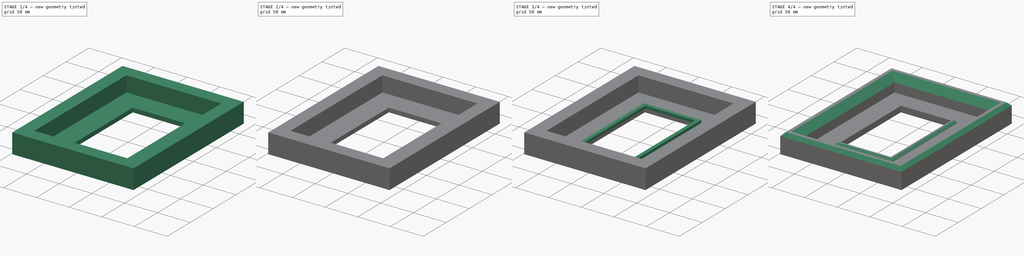
[diagram: build sequence overview — one tinted view per stage of 4, left to right]
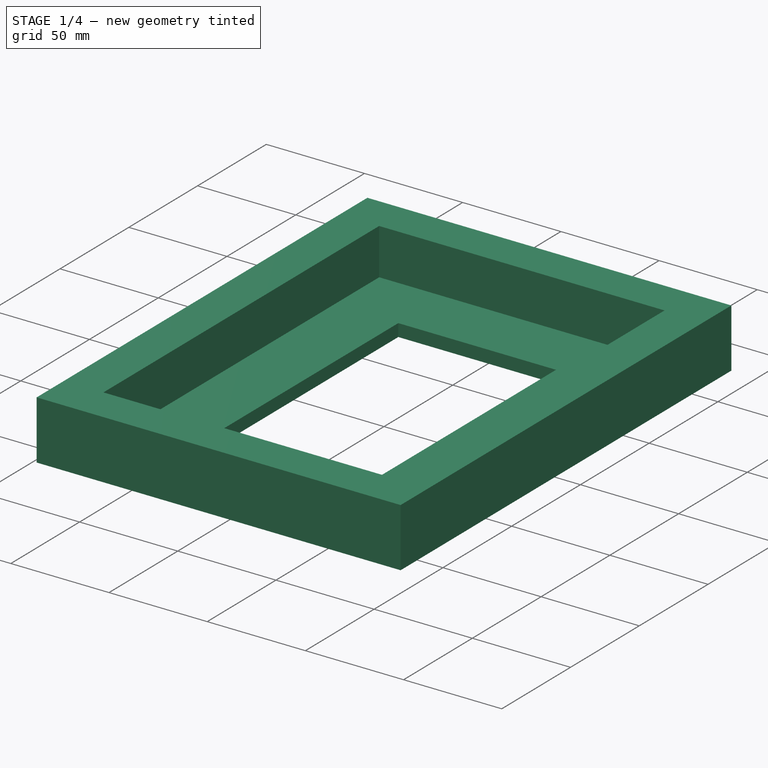
[diagram: stage 1 of 4 — iso view after this stage's code; geometry added in this stage tinted green]
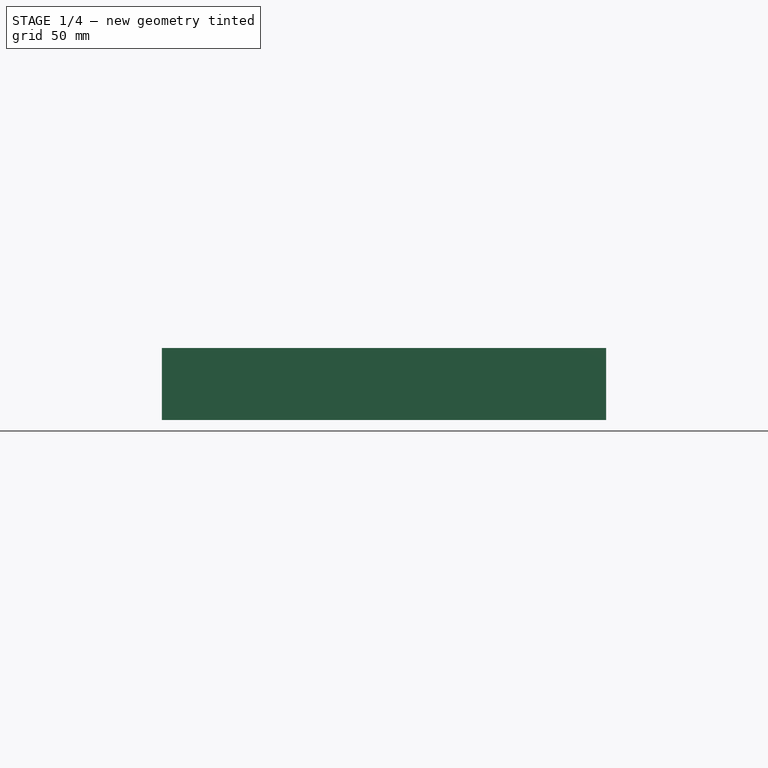
[diagram: stage 1 of 4 — front view after this stage's code; geometry added in this stage tinted green]
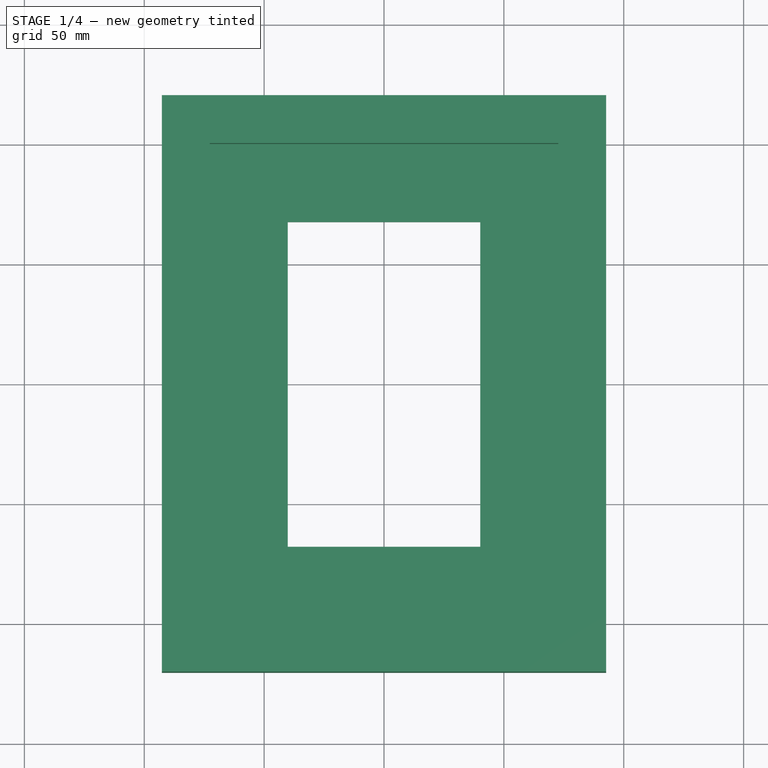
[diagram: stage 1 of 4 — top view after this stage's code; geometry added in this stage tinted green]
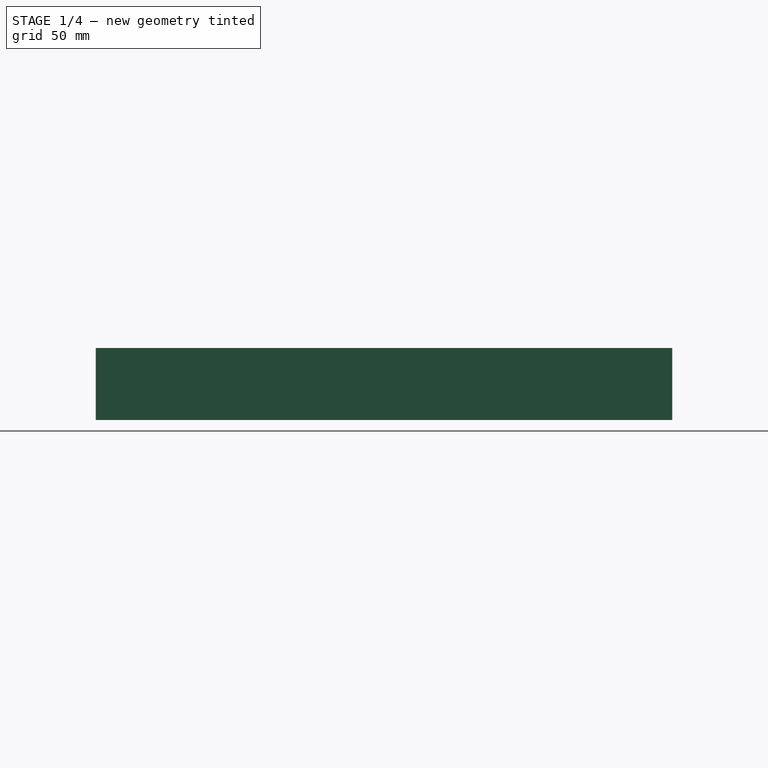
[diagram: stage 1 of 4 — right view after this stage's code; geometry added in this stage tinted green]
FCSTD DOCUMENT  (FreeCAD 0.21R33771 (Git))
Label: Wall Frame
License: All rights reserved
LicenseURL: http://en.wikipedia.org/wiki/All_rights_reserved
objects: Sketcher::SketchObject×9, PartDesign::Pocket×7, PartDesign::Chamfer×3, PartDesign::Pad×2, Spreadsheet::Sheet×1, PartDesign::Body×1, App::Part×1
note: 34 computed .brp shape members not serialized (recipe doc carries the construction recipe); baked Part::Feature solids carry a one-line shape summary decoded from their .brp

FEATURE [Sketcher::SketchObject] Sketch  label="Wall Frame Outer Sketch"
  FullyConstrained = true
  MapMode = 5
  Support = -> [XY_Plane001]
  expr: Constraints[10] = Spreadsheet.Frame_Outer_Width
  expr: Constraints[11] = Spreadsheet.Frame_Outer_Length
  sketch-geometry (5):
    g0: LineSegment StartX=-92.66 StartY=120.25 StartZ=0 EndX=-92.66 EndY=-120.25 EndZ=0
    g1: LineSegment StartX=-92.66 StartY=-120.25 StartZ=0 EndX=92.66 EndY=-120.25 EndZ=0
    g2: LineSegment StartX=92.66 StartY=-120.25 StartZ=0 EndX=92.66 EndY=120.25 EndZ=0
    g3: LineSegment StartX=92.66 StartY=120.25 StartZ=0 EndX=-92.66 EndY=120.25 EndZ=0
    g4: GeomPoint X=0 Y=0 Z=0
  constraints (12):
    c: Coincident(g0,g1)
    c: Coincident(g1,g2)
    c: Coincident(g2,g3)
    c: Coincident(g3,g0)
    c: Horizontal(g1)
    c: Horizontal(g3)
    c: Vertical(g0)
    c: Vertical(g2)
    c: Symmetric(g1,g0,g4)
    c: Coincident(g4,g-1)
    c: DistanceX(g3,g3) = 185.32
    c: DistanceY(g2,g2) = 240.5
FEATURE [PartDesign::Pad] Pad  label="Wall Frame Outer Pad"
  Direction = (0,0,1)
  Length = 30
  Length2 = 10
  Profile = -> Sketch
  ReferenceAxis = -> Sketch [N_Axis]
  Type = 0
FEATURE [Spreadsheet::Sheet] Spreadsheet  label="p"
  cells = A1='Frame_Outer_Width; B1(Frame_Outer_Width)=185.32; C1='DO NOT CHANGE; A2='Frame_Outer_Length; B2(Frame_Outer_Length)=240.5; C2='DO NOT CHANGE; A3='Frame_Outer_Thickness; B3(Frame_Outer_Thickness)=30; C3='DO NOT CHANGE; A4='Frame_Outer_Inner_Chamfer; B4(Frame_Outer_Inner_Chamfer)=10; C4='<---   YOU MAY CHANGE; A5='Frame_Outer_Outer_Chamfer; B5(Frame_Outer_Outer_Chamfer)=5; C5='<---   YOU MAY CHANGE; A7='Frame_First_Inner_Pocket_Width; B7(card_holder_width)=145.32; C7='DO NOT CHANGE; A8='Frame_First_Inner_Pocket_Length; B8(card_holder_length)=200.5; C8='DO NOT CHANGE; A9='card_holder_thickness; B9(card_holder_thickness)=6.4; C9='DO NOT CHANGE; A10='Frame_First_Inner_Pocket_Depth; B10(Frame_First_Inner_Pocket)==B3 - B14; C10='DO NOT CHANGE; F11='PSA Normal Card; G11='PSA Topps Giants Card; A12='PSA_Frame_Width; B12(PSA_Frame_Width)=80.32; C12='<---   YOU MAY CHANGE; F12=80.32; G12=107.485; A13='PSA_Frame_Length; B13(PSA_Frame_Length)=135.5; C13='<---   YOU MAY CHANGE; F13=135.5; G13=184.2; A14='PSA_Frame_Thickness; B14(PSA_Frame_Thickness)=6.4; C14='DO NOT CHANGE; A16='Frame_PSA_Border_Height; B16(Frame_PSA_Border_Height)=4; C16='<---   YOU MAY CHANGE; A17='Frame_PSA_Border_Chamfer; B17(Frame_PSA_Border_Chamfer)=3; C17='<---   YOU MAY CHANGE; D17='Must be at least 1mm less "Frame_PSA_Border_Height", may not be same
FEATURE [Sketcher::SketchObject] Sketch003  label="Wall Frame First Inner Sketch"
  AttachmentOffset = pos=(0,0,30) rot=(0,0,1;0rad)
  FullyConstrained = true
  MapMode = 5
  Placement = pos=(0,0,30) rot=(0,0,1;0rad)
  Support = -> [XY_Plane001]
  expr: Constraints[10] = <<p>>.card_holder_width
  expr: Constraints[11] = <<p>>.card_holder_length
  sketch-geometry (5):
    g0: LineSegment StartX=-72.66 StartY=100.25 StartZ=0 EndX=-72.66 EndY=-100.25 EndZ=0
    g1: LineSegment StartX=-72.66 StartY=-100.25 StartZ=0 EndX=72.66 EndY=-100.25 EndZ=0
    g2: LineSegment StartX=72.66 StartY=-100.25 StartZ=0 EndX=72.66 EndY=100.25 EndZ=0
    g3: LineSegment StartX=72.66 StartY=100.25 StartZ=0 EndX=-72.66 EndY=100.25 EndZ=0
    g4: GeomPoint X=0 Y=0 Z=0
  constraints (12):
    c: Coincident(g0,g1)
    c: Coincident(g1,g2)
    c: Coincident(g2,g3)
    c: Coincident(g3,g0)
    c: Horizontal(g1)
    c: Horizontal(g3)
    c: Vertical(g0)
    c: Vertical(g2)
    c: Symmetric(g1,g0,g4)
    c: Coincident(g4,g-1)
    c: DistanceX(g3,g3) = 145.32
    c: DistanceY(g2,g2) = 200.5
FEATURE [PartDesign::Pocket] Pocket  label="Wall Frame First Inner Pocket"
  BaseFeature = -> Pad
  Direction = (0,0,-1)
  Length = 23.6
  Length2 = 5
  Profile = -> Sketch003
  ReferenceAxis = -> Sketch003 [N_Axis]
  Type = 0
  expr: Length = <<p>>.Frame_First_Inner_Pocket
FEATURE [Sketcher::SketchObject] Sketch004  label="Wall Frame PSA Sketch"
  AttachmentOffset = pos=(0,0,6.4) rot=(0,0,1;0rad)
  FullyConstrained = true
  MapMode = 5
  Placement = pos=(0,0,6.4) rot=(0,0,1;0rad)
  Support = -> [XY_Plane001]
  expr: .AttachmentOffset.Base.z = <<p>>.card_holder_thickness
  expr: Constraints[10] = Spreadsheet.PSA_Frame_Width
  expr: Constraints[11] = Spreadsheet.PSA_Frame_Length
  sketch-geometry (5):
    g0: LineSegment StartX=-40.16 StartY=67.75 StartZ=0 EndX=-40.16 EndY=-67.75 EndZ=0
    g1: LineSegment StartX=-40.16 StartY=-67.75 StartZ=0 EndX=40.16 EndY=-67.75 EndZ=0
    g2: LineSegment StartX=40.16 StartY=-67.75 StartZ=0 EndX=40.16 EndY=67.75 EndZ=0
    g3: LineSegment StartX=40.16 StartY=67.75 StartZ=0 EndX=-40.16 EndY=67.75 EndZ=0
    g4: GeomPoint X=0 Y=0 Z=0
  constraints (12):
    c: Coincident(g0,g1)
    c: Coincident(g1,g2)
    c: Coincident(g2,g3)
    c: Coincident(g3,g0)
    c: Horizontal(g1)
    c: Horizontal(g3)
    c: Vertical(g0)
    c: Vertical(g2)
    c: Symmetric(g1,g0,g4)
    c: Coincident(g4,g-1)
    c: DistanceX(g3,g3) = 80.32
    c: DistanceY(g2,g2) = 135.5
FEATURE [PartDesign::Pocket] Pocket001  label="Wall Frame PSA Pocket"
  BaseFeature = -> Pocket
  Direction = (0,0,-1)
  Length = 6.4
  Length2 = 5
  Profile = -> Sketch004
  ReferenceAxis = -> Sketch004 [N_Axis]
  Type = 0
  expr: Length = <<p>>.PSA_Frame_Thickness
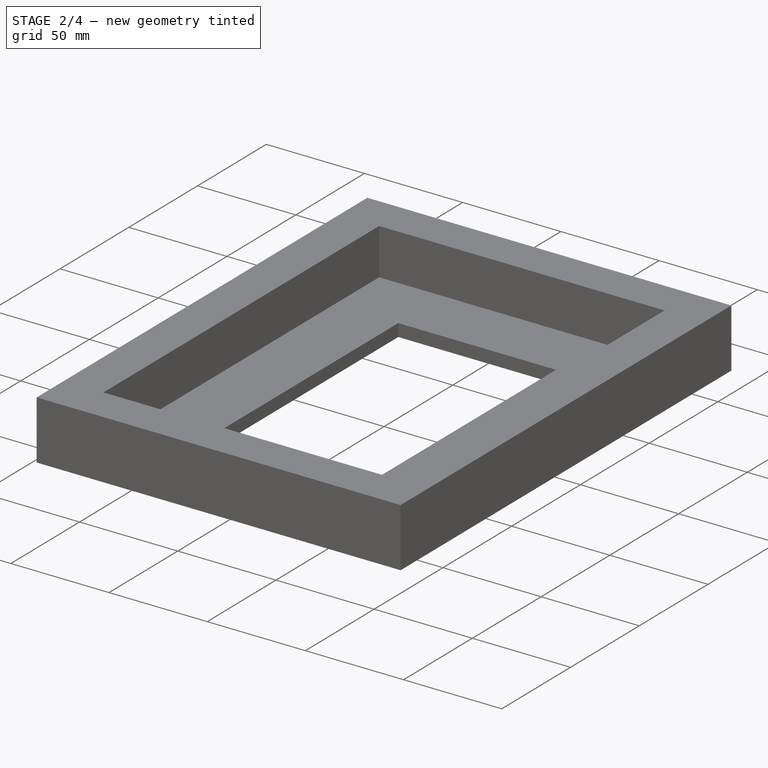
[diagram: stage 2 of 4 — iso view after this stage's code; geometry added in this stage tinted green]
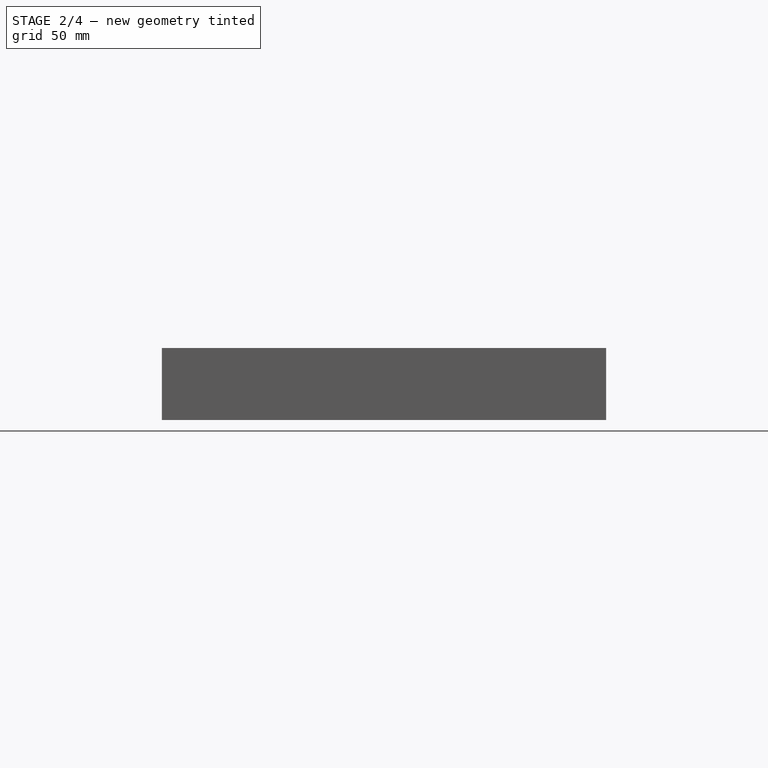
[diagram: stage 2 of 4 — front view after this stage's code; geometry added in this stage tinted green]
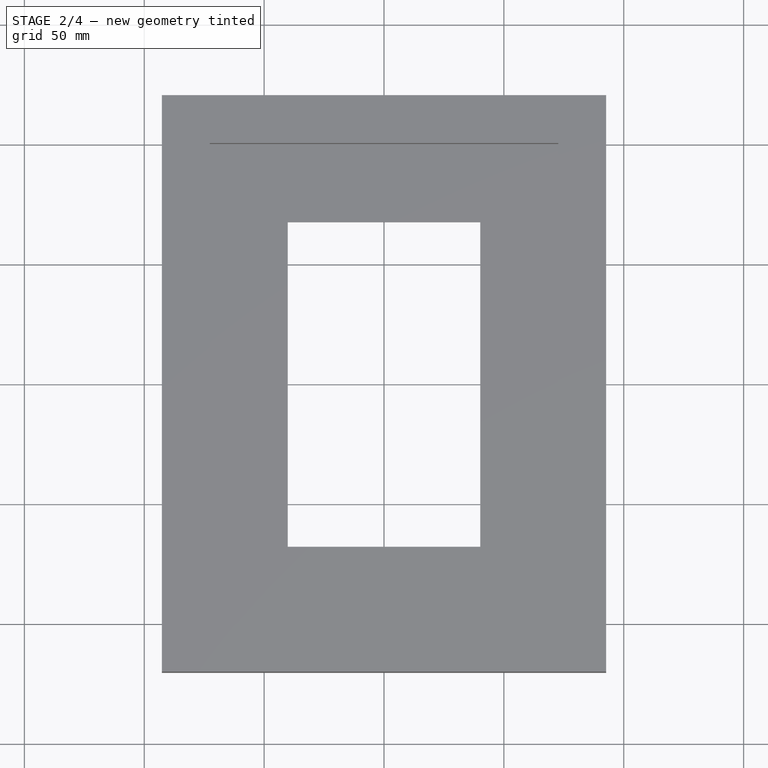
[diagram: stage 2 of 4 — top view after this stage's code; geometry added in this stage tinted green]
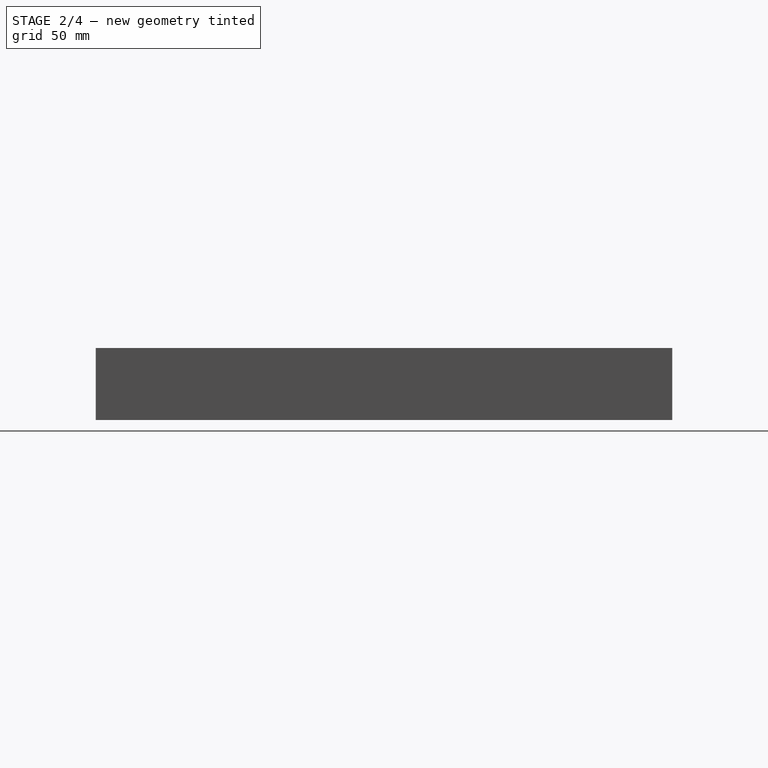
[diagram: stage 2 of 4 — right view after this stage's code; geometry added in this stage tinted green]
FEATURE [Sketcher::SketchObject] Sketch005  label="Wall Frame Landscape Screw Sketch"
  FullyConstrained = true
  MapMode = 5
  Support = -> [XY_Plane001]
  sketch-geometry (4):
    g0: ArcOfCircle CenterX=-82.985 CenterY=0 CenterZ=0 NormalX=0 NormalY=0 NormalZ=1 AngleXU=0 Radius=2.985 StartAngle=3.14159 EndAngle=6.28319
    g1: LineSegment StartX=-80 StartY=-7e-16 StartZ=0 EndX=-80 EndY=18.026 EndZ=0
    g2: LineSegment StartX=-85.97 StartY=18.026 StartZ=0 EndX=-85.97 EndY=0 EndZ=0
    g3: ArcOfCircle CenterX=-82.985 CenterY=22.29 CenterZ=0 NormalX=0 NormalY=0 NormalZ=1 AngleXU=0 Radius=5.205 StartAngle=5.32315 EndAngle=10.3848
  constraints (12):
    c: Tangent(g0,g1) = -1.5708
    c: Tangent(g2,g0) = -1.5708
    c: PointOnObject(g0,g-1)
    c: Vertical(g1)
    c: Diameter(g3) = 10.41
    c: Coincident(g3,g2)
    c: Coincident(g3,g1)
    c: Horizontal(g2,g1)
    c: Vertical(g2)
    c: DistanceX(g0,g-1) = 80
    c: DistanceY(g0,g3) = 22.29
    c: Diameter(g0) = 5.97
FEATURE [PartDesign::Pocket] Pocket002  label="Wall Frame Landscape Screw Pocket"
  BaseFeature = -> Pocket001
  Direction = (0,0,-1)
  Length = 3
  Length2 = 5
  Profile = -> Sketch005
  ReferenceAxis = -> Sketch005 [N_Axis]
  Reversed = true
  Type = 0
FEATURE [Sketcher::SketchObject] Sketch006  label="Wall Frame Landscape Screw Head Relief Sketch"
  FullyConstrained = true
  MapMode = 5
  Placement = pos=(0,0,0) rot=(1,0,0;1.5708rad)
  Support = -> [XZ_Plane001]
  sketch-geometry (4):
    g0: LineSegment StartX=-90 StartY=5.98 StartZ=0 EndX=-76 EndY=5.98 EndZ=0
    g1: LineSegment StartX=-76 StartY=5.98 StartZ=0 EndX=-76 EndY=2.98 EndZ=0
    g2: LineSegment StartX=-76 StartY=2.98 StartZ=0 EndX=-90 EndY=2.98 EndZ=0
    g3: LineSegment StartX=-90 StartY=2.98 StartZ=0 EndX=-90 EndY=5.98 EndZ=0
  constraints (12):
    c: Coincident(g0,g1)
    c: Coincident(g1,g2)
    c: Coincident(g2,g3)
    c: Coincident(g3,g0)
    c: Horizontal(g0)
    c: Horizontal(g2)
    c: Vertical(g1)
    c: Vertical(g3)
    c: DistanceX(g1,g-1) = 76
    c: DistanceX(g2,g-1) = 90
    c: DistanceY(g3,g3) = 3
    c: DistanceY(g-1,g1) = 2.98
FEATURE [PartDesign::Pocket] Pocket003  label="Wall Frame Landscape Screw Head Relief Pocket"
  BaseFeature = -> Pocket002
  Direction = (0,1,2e-16)
  Length = 60
  Length2 = 5
  Midplane = true
  Profile = -> Sketch006
  ReferenceAxis = -> Sketch006 [N_Axis]
  Type = 0
FEATURE [Sketcher::SketchObject] Sketch007  label="Wall Frame Portrait Screw Sketch"
  FullyConstrained = true
  MapMode = 5
  Support = -> [XY_Plane001]
  sketch-geometry (4):
    g0: ArcOfCircle CenterX=0 CenterY=108 CenterZ=0 NormalX=0 NormalY=0 NormalZ=1 AngleXU=0 Radius=2.985 StartAngle=1.5708 EndAngle=4.71239
    g1: LineSegment StartX=-5e-16 StartY=105.015 StartZ=0 EndX=18.706 EndY=105.015 EndZ=0
    g2: LineSegment StartX=18.706 StartY=110.985 StartZ=0 EndX=0 EndY=110.985 EndZ=0
    g3: ArcOfCircle CenterX=22.97 CenterY=108 CenterZ=0 NormalX=0 NormalY=0 NormalZ=1 AngleXU=0 Radius=5.205 StartAngle=3.75235 EndAngle=8.81402
  constraints (12):
    c: Tangent(g0,g1) = -1.5708
    c: Tangent(g2,g0) = -1.5708
    c: PointOnObject(g0,g-2)
    c: Horizontal(g2)
    c: Diameter(g0) = 5.97
    c: DistanceY(g-1,g0) = 108
    c: Diameter(g3) = 10.41
    c: Coincident(g3,g2)
    c: Coincident(g3,g1)
    c: Horizontal(g1)
    c: Vertical(g1,g2)
    c: DistanceX(g0,g3) = 22.97
FEATURE [PartDesign::Pocket] Pocket004  label="Wall Frame Portrait Screw Pocket"
  BaseFeature = -> Pocket003
  Direction = (0,0,-1)
  Length = 3
  Length2 = 5
  Midplane = true
  Profile = -> Sketch007
  ReferenceAxis = -> Sketch007 [N_Axis]
  Type = 0
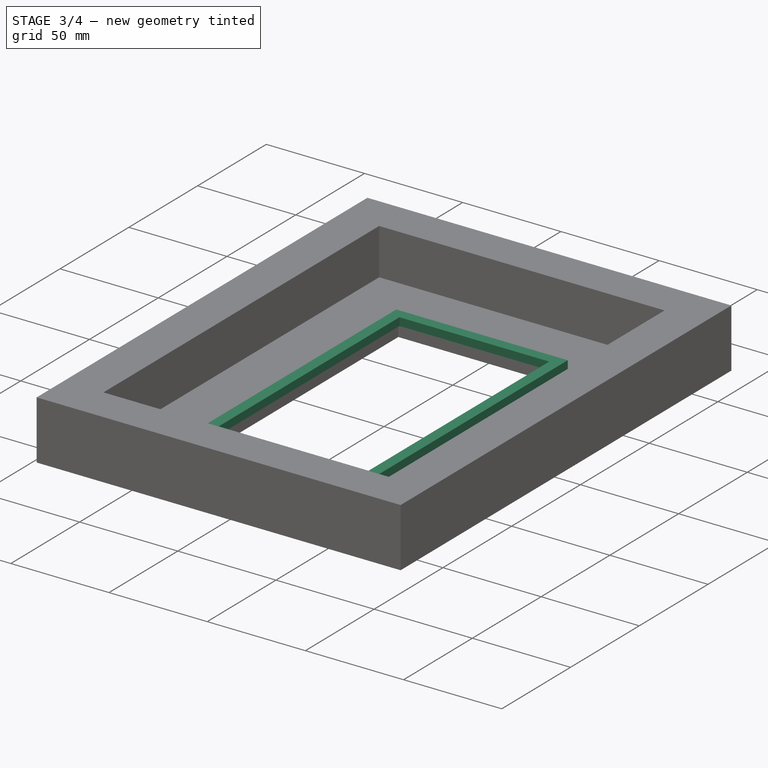
[diagram: stage 3 of 4 — iso view after this stage's code; geometry added in this stage tinted green]
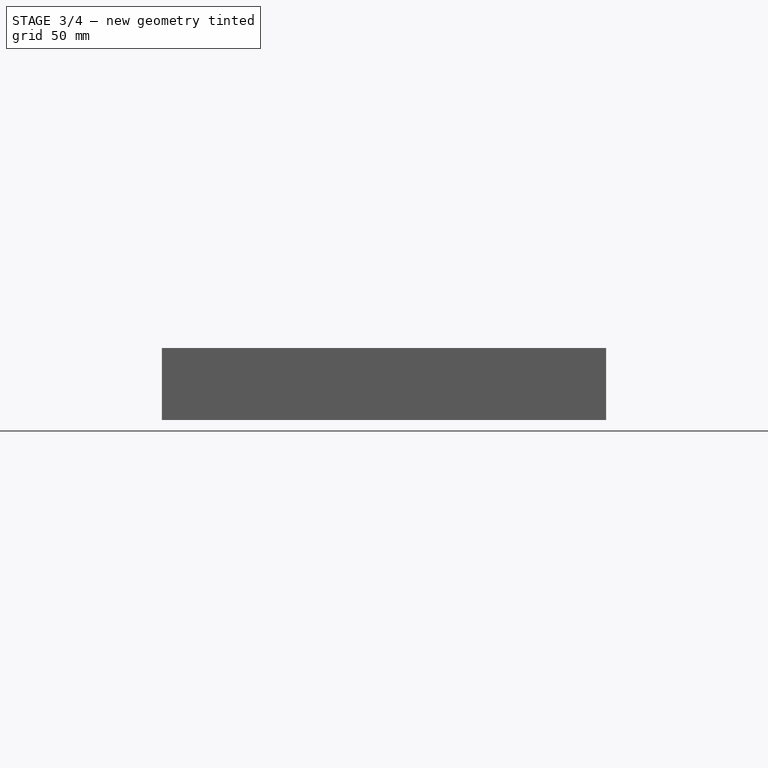
[diagram: stage 3 of 4 — front view after this stage's code; geometry added in this stage tinted green]
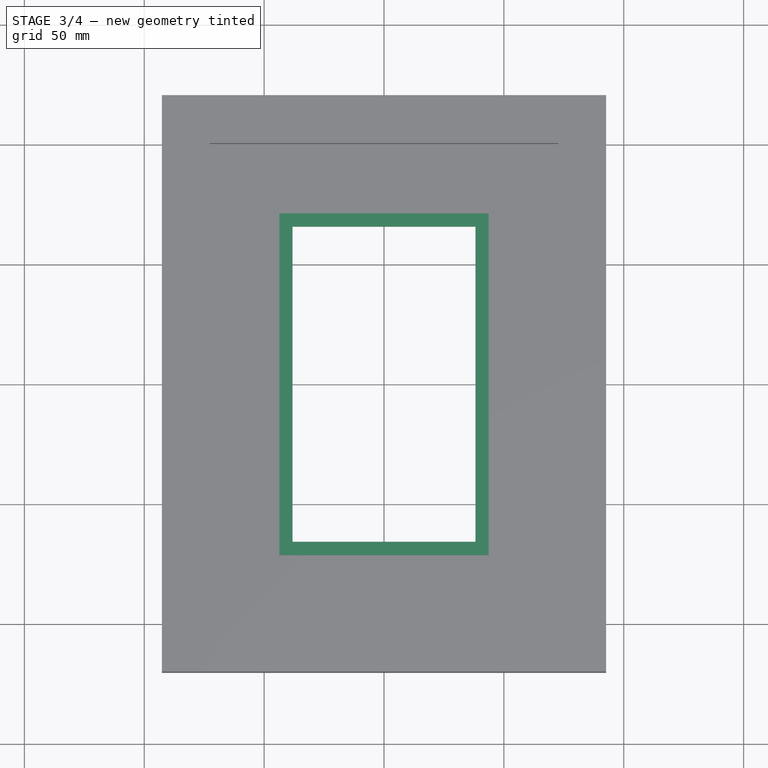
[diagram: stage 3 of 4 — top view after this stage's code; geometry added in this stage tinted green]
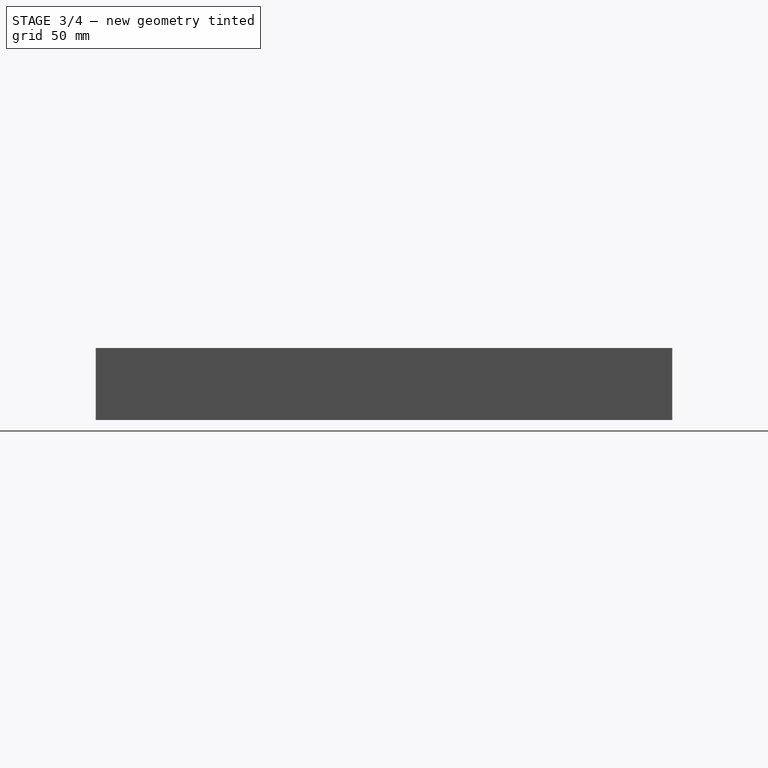
[diagram: stage 3 of 4 — right view after this stage's code; geometry added in this stage tinted green]
FEATURE [Sketcher::SketchObject] Sketch008  label="Wall Frame Portrait Screw Head Relief Sketch"
  FullyConstrained = true
  MapMode = 5
  Placement = pos=(0,0,0) rot=(0.57735,0.57735,0.57735;2.0944rad)
  Support = -> [YZ_Plane001]
  sketch-geometry (4):
    g0: LineSegment StartX=102 StartY=3.9227 StartZ=0 EndX=114 EndY=3.9227 EndZ=0
    g1: LineSegment StartX=114 StartY=3.9227 StartZ=0 EndX=114 EndY=1.4983 EndZ=0
    g2: LineSegment StartX=114 StartY=1.4983 StartZ=0 EndX=102 EndY=1.4983 EndZ=0
    g3: LineSegment StartX=102 StartY=1.4983 StartZ=0 EndX=102 EndY=3.9227 EndZ=0
  constraints (12):
    c: Coincident(g0,g1)
    c: Coincident(g1,g2)
    c: Coincident(g2,g3)
    c: Coincident(g3,g0)
    c: Horizontal(g0)
    c: Horizontal(g2)
    c: Vertical(g1)
    c: Vertical(g3)
    c: DistanceX(g-1,g2) = 102
    c: DistanceX(g-1,g1) = 114
    c: DistanceY(g-1,g0) = 3.9227
    c: DistanceY(g-1,g2) = 1.4983
FEATURE [PartDesign::Pocket] Pocket005  label="Wall Frame Portrait Screw Head Relief Pocket"
  BaseFeature = -> Pocket004
  Direction = (-1,2e-16,-3e-16)
  Length = 60
  Length2 = 5
  Midplane = true
  Profile = -> Sketch008
  ReferenceAxis = -> Sketch008 [N_Axis]
  Type = 0
FEATURE [Sketcher::SketchObject] Sketch009  label="Wall Frame PSA Border Outer Sketch"
  AttachmentOffset = pos=(0,0,6.4) rot=(0,0,1;0rad)
  FullyConstrained = true
  MapMode = 5
  Placement = pos=(0,0,6.4) rot=(0,0,1;0rad)
  Support = -> [XY_Plane001]
  expr: .AttachmentOffset.Base.z = <<p>>.card_holder_thickness
  expr: Constraints[10] = Spreadsheet.PSA_Frame_Width + 7
  expr: Constraints[11] = Spreadsheet.PSA_Frame_Length + 7
  sketch-geometry (5):
    g0: LineSegment StartX=-43.66 StartY=71.25 StartZ=0 EndX=-43.66 EndY=-71.25 EndZ=0
    g1: LineSegment StartX=-43.66 StartY=-71.25 StartZ=0 EndX=43.66 EndY=-71.25 EndZ=0
    g2: LineSegment StartX=43.66 StartY=-71.25 StartZ=0 EndX=43.66 EndY=71.25 EndZ=0
    g3: LineSegment StartX=43.66 StartY=71.25 StartZ=0 EndX=-43.66 EndY=71.25 EndZ=0
    g4: GeomPoint X=0 Y=0 Z=0
  constraints (12):
    c: Coincident(g0,g1)
    c: Coincident(g1,g2)
    c: Coincident(g2,g3)
    c: Coincident(g3,g0)
    c: Horizontal(g1)
    c: Horizontal(g3)
    c: Vertical(g0)
    c: Vertical(g2)
    c: Symmetric(g1,g0,g4)
    c: Coincident(g4,g-1)
    c: DistanceX(g3,g3) = 87.32
    c: DistanceY(g2,g2) = 142.5
FEATURE [PartDesign::Pad] Pad001  label="Wall Frame PSA Border Outer Pad"
  BaseFeature = -> Pocket005
  Direction = (0,0,1)
  Length = 4
  Length2 = 10
  Profile = -> Sketch009
  ReferenceAxis = -> Sketch009 [N_Axis]
  Type = 0
  expr: Length = <<p>>.Frame_PSA_Border_Height
FEATURE [Sketcher::SketchObject] Sketch010  label="Wall Frame PSA Border Inner Sketch"
  FullyConstrained = true
  MapMode = 5
  Support = -> [XY_Plane001]
  expr: Constraints[10] = Spreadsheet.PSA_Frame_Width - 4
  expr: Constraints[11] = Spreadsheet.PSA_Frame_Length - 4
  sketch-geometry (5):
    g0: LineSegment StartX=-38.16 StartY=65.75 StartZ=0 EndX=-38.16 EndY=-65.75 EndZ=0
    g1: LineSegment StartX=-38.16 StartY=-65.75 StartZ=0 EndX=38.16 EndY=-65.75 EndZ=0
    g2: LineSegment StartX=38.16 StartY=-65.75 StartZ=0 EndX=38.16 EndY=65.75 EndZ=0
    g3: LineSegment StartX=38.16 StartY=65.75 StartZ=0 EndX=-38.16 EndY=65.75 EndZ=0
    g4: GeomPoint X=0 Y=0 Z=0
  constraints (12):
    c: Coincident(g0,g1)
    c: Coincident(g1,g2)
    c: Coincident(g2,g3)
    c: Coincident(g3,g0)
    c: Horizontal(g1)
    c: Horizontal(g3)
    c: Vertical(g0)
    c: Vertical(g2)
    c: Symmetric(g1,g0,g4)
    c: Coincident(g4,g-1)
    c: DistanceX(g3,g3) = 76.32
    c: DistanceY(g2,g2) = 131.5
FEATURE [PartDesign::Pocket] Pocket006  label="Wall Frame PSA Border Inner Pocket"
  BaseFeature = -> Pad001
  Direction = (0,0,-1)
  Length = 5
  Length2 = 5
  Midplane = true
  Profile = -> Sketch010
  ReferenceAxis = -> Sketch010 [N_Axis]
  Type = 1
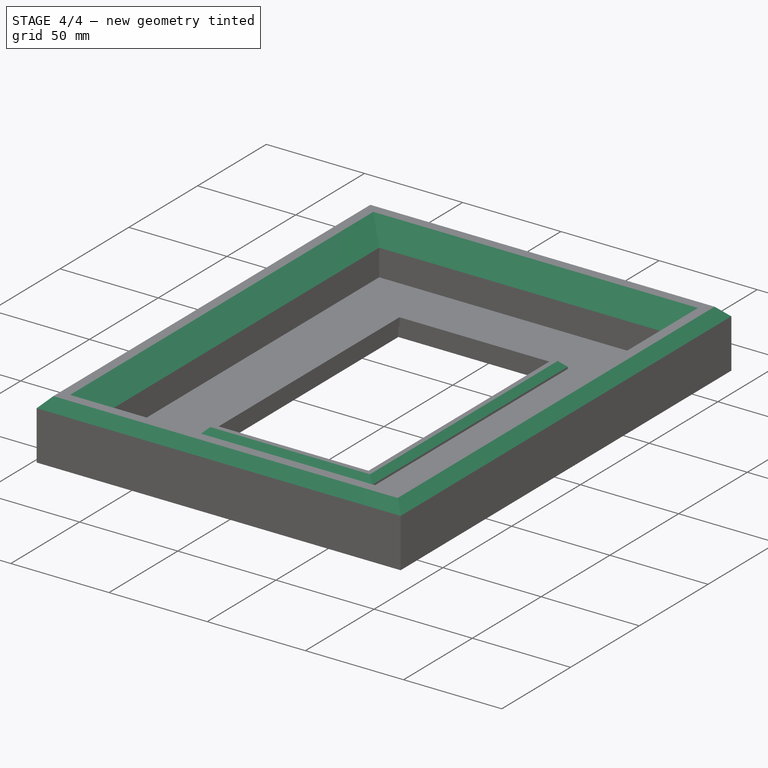
[diagram: stage 4 of 4 — iso view after this stage's code; geometry added in this stage tinted green]
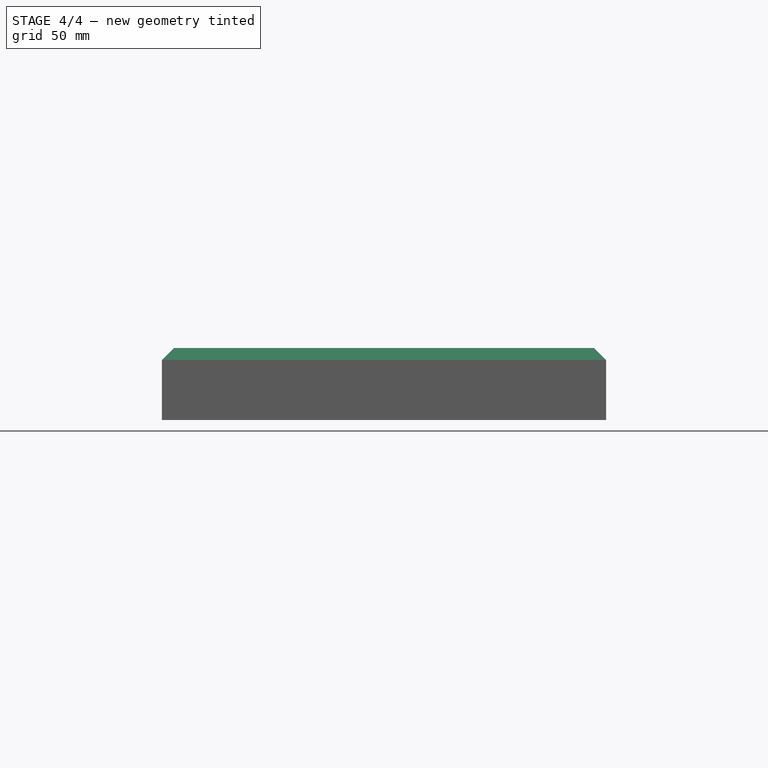
[diagram: stage 4 of 4 — front view after this stage's code; geometry added in this stage tinted green]
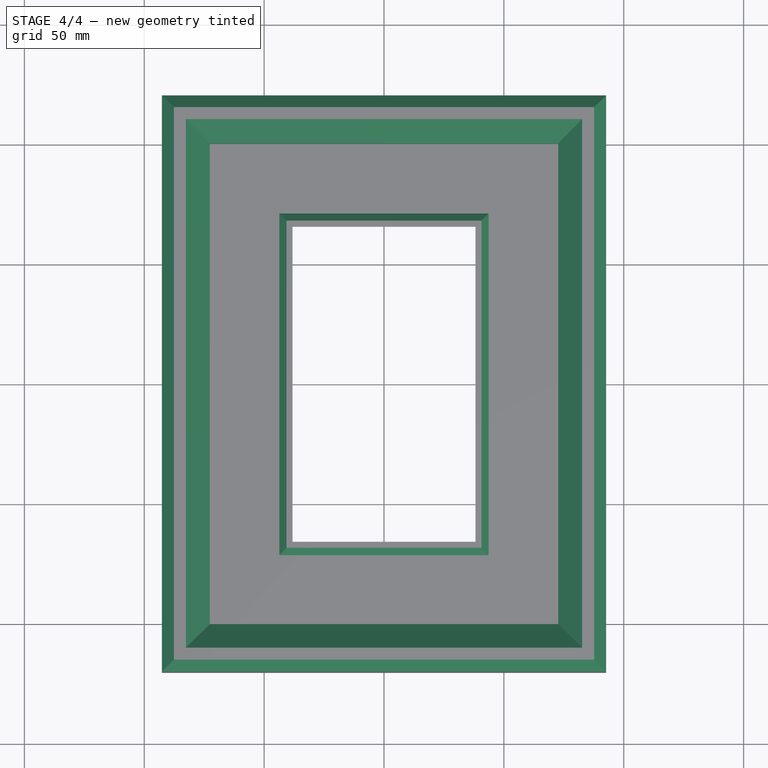
[diagram: stage 4 of 4 — top view after this stage's code; geometry added in this stage tinted green]
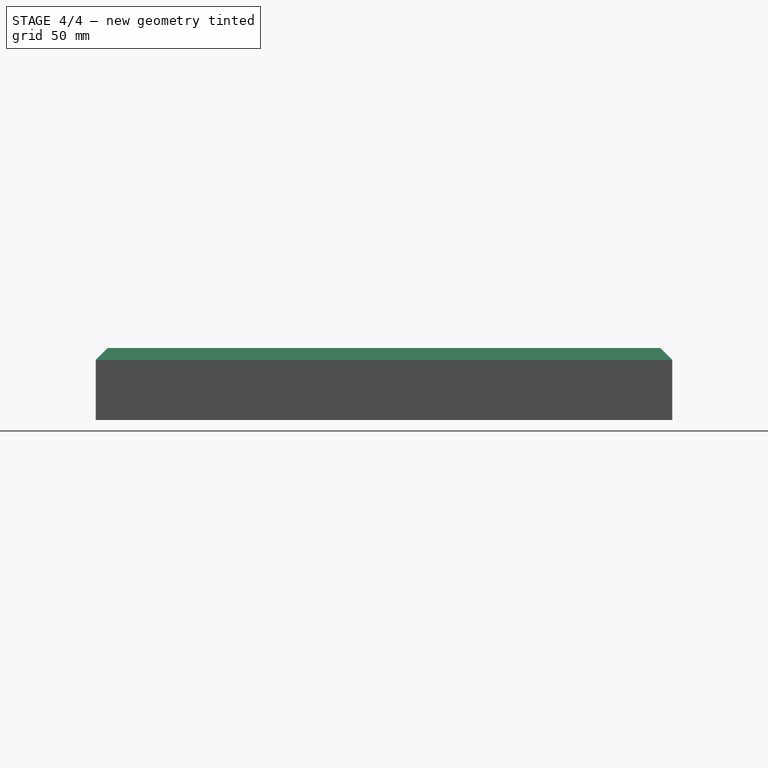
[diagram: stage 4 of 4 — right view after this stage's code; geometry added in this stage tinted green]
FEATURE [PartDesign::Chamfer] Chamfer  label="Wall Frame Outer Inner Chamfer"
  Angle = 45
  Base = -> Pocket006 [Edge25,Edge28,Edge27,Edge26]
  BaseFeature = -> Pocket006
  ChamferType = 0
  FlipDirection = false
  Size = 10
  Size2 = 1
  SupportTransform = false
  UseAllEdges = false
FEATURE [PartDesign::Chamfer] Chamfer001  label="Wall Frame Outer Outer Chamfer"
  Angle = 45
  Base = -> Chamfer [Edge6,Edge5,Edge7,Edge8]
  BaseFeature = -> Chamfer
  ChamferType = 0
  FlipDirection = false
  Size = 5
  Size2 = 1
  SupportTransform = false
  UseAllEdges = false
FEATURE [PartDesign::Chamfer] Chamfer002  label="Wall Frame PSA Border Chamfer"
  Angle = 45
  Base = -> Chamfer001 [Edge83,Edge85,Edge87,Edge88]
  BaseFeature = -> Chamfer001
  ChamferType = 0
  FlipDirection = false
  Size = 3
  Size2 = 1
  SupportTransform = false
  UseAllEdges = false
  expr: Size = <<p>>.Frame_PSA_Border_Chamfer
FEATURE [PartDesign::Body] Body  label="Wall Frame Body"
  Group = -> [Sketch,Pad,Sketch003,Pocket,Sketch004,Pocket001,Sketch005,Pocket002,Sketch006,Pocket003,Sketch007,Pocket004,Sketch008,Pocket005,Sketch009,Pad001,Sketch010,Pocket006,Chamfer,Chamfer001,Chamfer002]
  Origin = -> Origin001
  Tip = -> Chamfer002
FEATURE [App::Part] Part  label="Wall Frame Part"
  Group = -> [Body]
  Origin = -> Origin
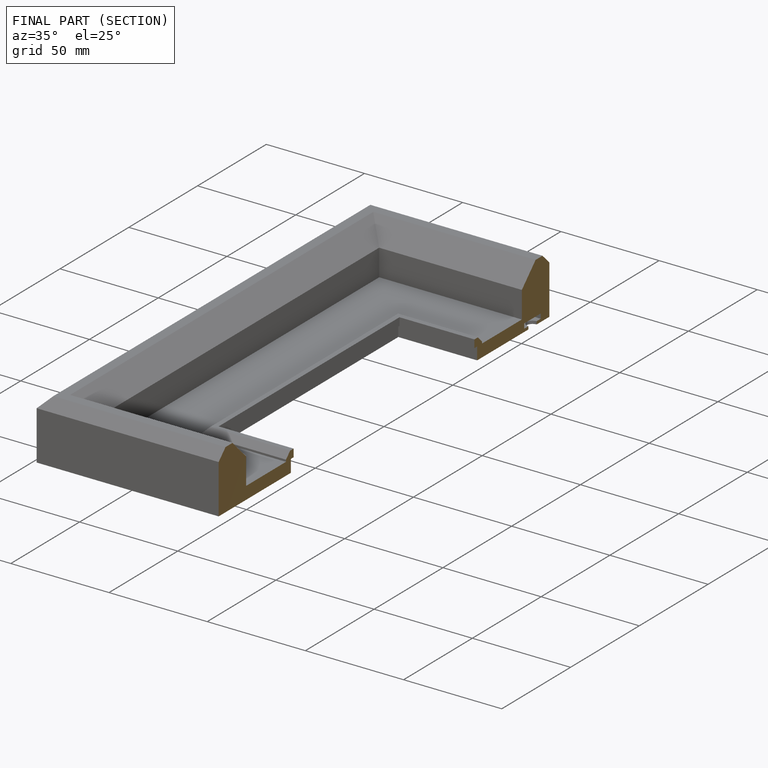
[diagram: finished part — half-section view (interior)]
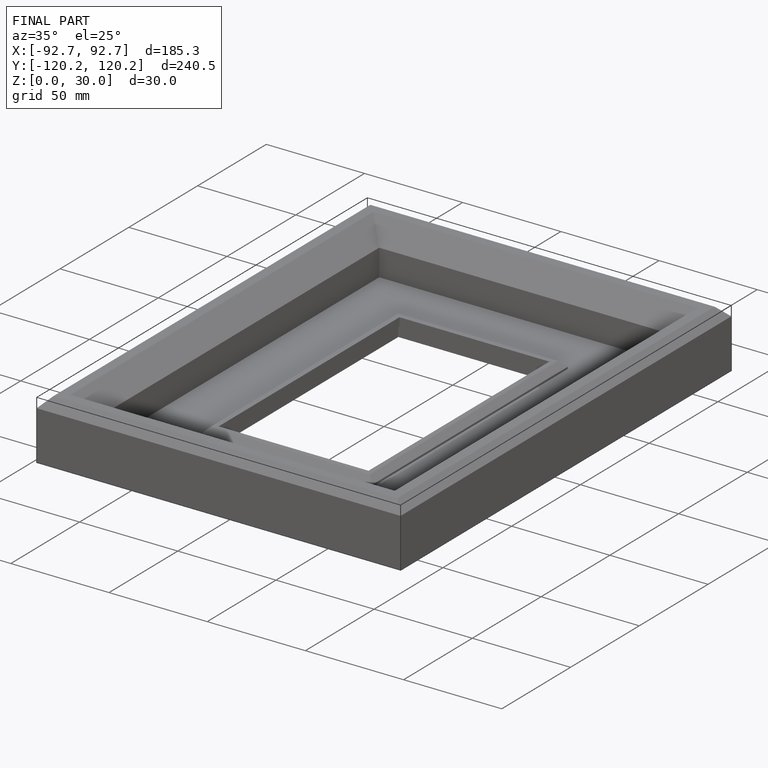
[diagram: finished part — iso view with bounding-box wireframe]
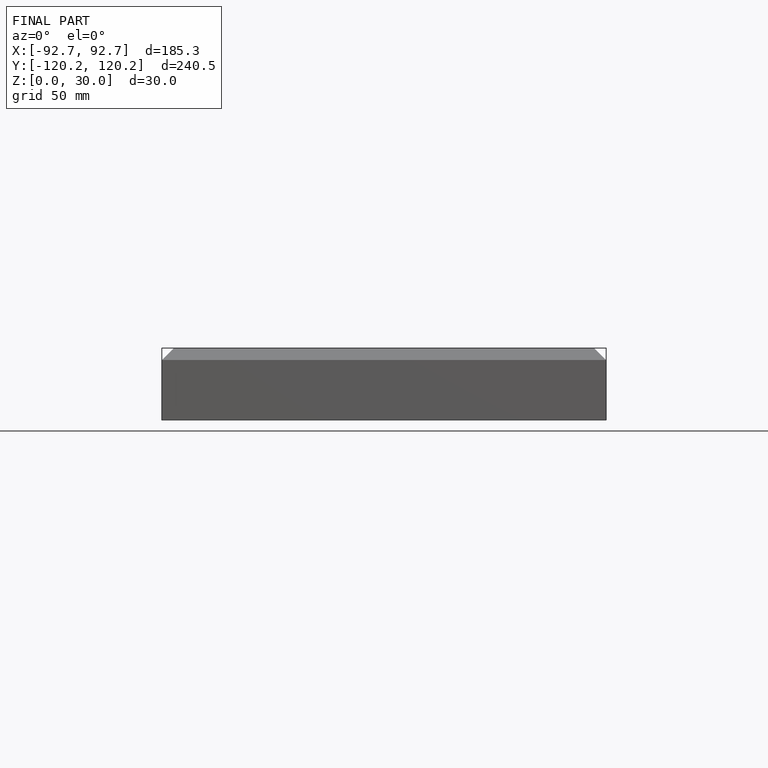
[diagram: finished part — front view with bounding-box wireframe]
